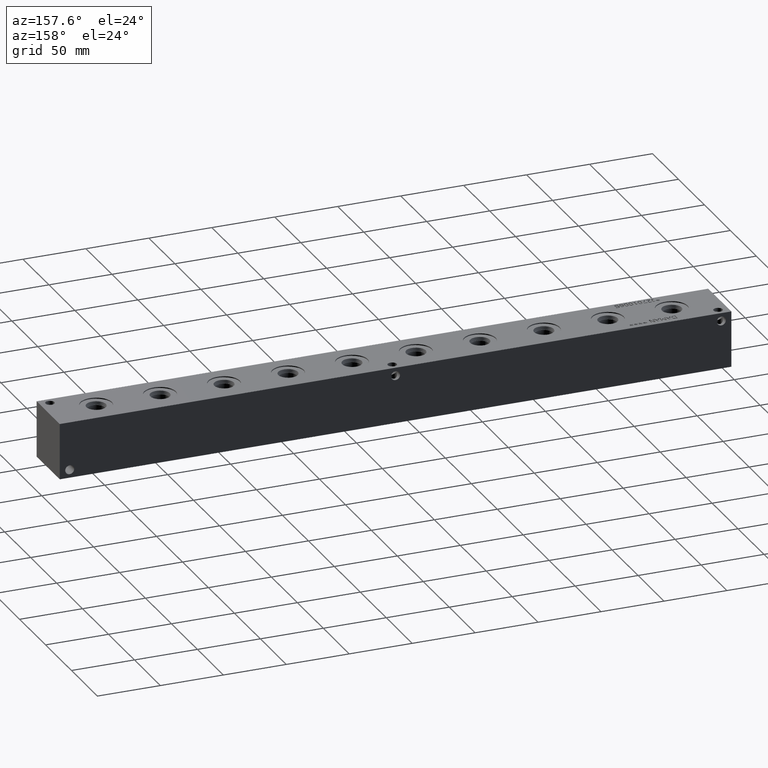
[diagram: clean part render]
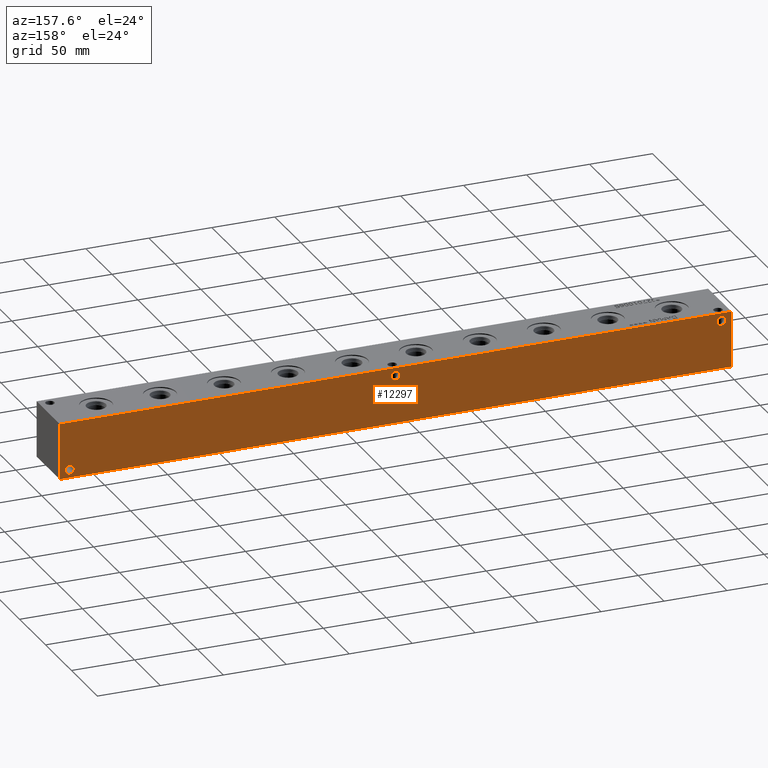
[diagram: same view with one face highlighted and labeled with its STEP entity id]
A machine part, auxiliary view. The second image highlights one B-rep face of the part: STEP entity #12297.
In plain terms, the highlighted planar face has unit normal (0, 1, 0).
Its self-contained STEP definition (entity closure, byte-faithful):
#973=CIRCLE('',#13512,3.5687);
#976=CIRCLE('',#13521,3.5687);
#979=CIRCLE('',#13530,3.5687);
#1094=FACE_BOUND('',#2905,.T.);
#1095=FACE_BOUND('',#2906,.T.);
#1096=FACE_BOUND('',#2907,.T.);
#2138=FACE_OUTER_BOUND('',#2904,.T.);
#2904=EDGE_LOOP('',(#11002,#11003,#11004,#11005));
#2905=EDGE_LOOP('',(#11006));
#2906=EDGE_LOOP('',(#11007));
#2907=EDGE_LOOP('',(#11008));
#3190=LINE('',#18913,#4021);
#3763=LINE('',#22072,#4594);
#3764=LINE('',#22075,#4595);
#3765=LINE('',#22076,#4596);
#4021=VECTOR('',#13950,10.);
#4594=VECTOR('',#16883,10.);
#4595=VECTOR('',#16886,10.);
#4596=VECTOR('',#16887,10.);
#4886=VERTEX_POINT('',#18910);
#4887=VERTEX_POINT('',#18912);
#5742=VERTEX_POINT('',#21976);
#5747=VERTEX_POINT('',#21992);
#5752=VERTEX_POINT('',#22008);
#5768=VERTEX_POINT('',#22068);
#5770=VERTEX_POINT('',#22074);
#6200=EDGE_CURVE('',#4886,#4887,#3190,.T.);
#7485=EDGE_CURVE('',#5742,#5742,#973,.T.);
#7494=EDGE_CURVE('',#5747,#5747,#976,.T.);
#7503=EDGE_CURVE('',#5752,#5752,#979,.T.);
#7533=EDGE_CURVE('',#5768,#4887,#3763,.T.);
#7534=EDGE_CURVE('',#5770,#5768,#3764,.T.);
#7535=EDGE_CURVE('',#5770,#4886,#3765,.T.);
#11002=ORIENTED_EDGE('',*,*,#7534,.T.);
#11003=ORIENTED_EDGE('',*,*,#7533,.T.);
#11004=ORIENTED_EDGE('',*,*,#6200,.F.);
#11005=ORIENTED_EDGE('',*,*,#7535,.F.);
#11006=ORIENTED_EDGE('',*,*,#7485,.T.);
#11007=ORIENTED_EDGE('',*,*,#7494,.T.);
#11008=ORIENTED_EDGE('',*,*,#7503,.T.);
#11337=PLANE('',#13561);
#12297=ADVANCED_FACE('',(#2138,#1094,#1095,#1096),#11337,.T.);
#13512=AXIS2_PLACEMENT_3D('',#21978,#16767,#16768);
#13521=AXIS2_PLACEMENT_3D('',#21994,#16787,#16788);
#13530=AXIS2_PLACEMENT_3D('',#22010,#16807,#16808);
#13561=AXIS2_PLACEMENT_3D('',#22073,#16884,#16885);
#13950=DIRECTION('',(-1.,0.,0.));
#16767=DIRECTION('center_axis',(0.,-1.,0.));
#16768=DIRECTION('ref_axis',(1.,0.,0.));
#16787=DIRECTION('center_axis',(0.,-1.,0.));
#16788=DIRECTION('ref_axis',(1.,0.,0.));
#16807=DIRECTION('center_axis',(0.,-1.,0.));
#16808=DIRECTION('ref_axis',(1.,0.,0.));
#16883=DIRECTION('',(0.,0.,1.));
#16884=DIRECTION('center_axis',(0.,1.,0.));
#16885=DIRECTION('ref_axis',(-1.,0.,0.));
#16886=DIRECTION('',(-1.,0.,0.));
#16887=DIRECTION('',(0.,0.,1.));
#18910=CARTESIAN_POINT('',(533.4,44.45,44.45));
#18912=CARTESIAN_POINT('',(0.,44.45,44.45));
#18913=CARTESIAN_POINT('',(533.4,44.45,44.45));
#21976=CARTESIAN_POINT('',(521.9065,44.45,6.35));
#21978=CARTESIAN_POINT('Origin',(525.4752,44.45,6.35));
#21992=CARTESIAN_POINT('',(4.3561,44.45,38.1));
#21994=CARTESIAN_POINT('Origin',(7.9248,44.45,38.1));
#22008=CARTESIAN_POINT('',(263.1313,44.45,38.1));
#22010=CARTESIAN_POINT('Origin',(266.7,44.45,38.1));
#22068=CARTESIAN_POINT('',(0.,44.45,0.));
#22072=CARTESIAN_POINT('',(0.,44.45,0.));
#22073=CARTESIAN_POINT('Origin',(533.4,44.45,0.));
#22074=CARTESIAN_POINT('',(533.4,44.45,0.));
#22075=CARTESIAN_POINT('',(533.4,44.45,0.));
#22076=CARTESIAN_POINT('',(533.4,44.45,0.));